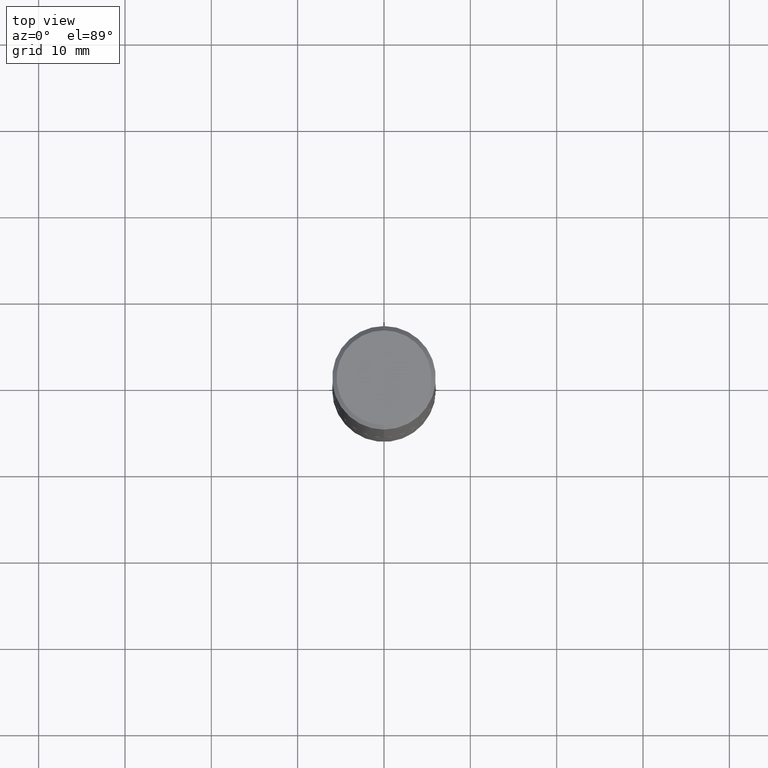
[diagram: clean part render]
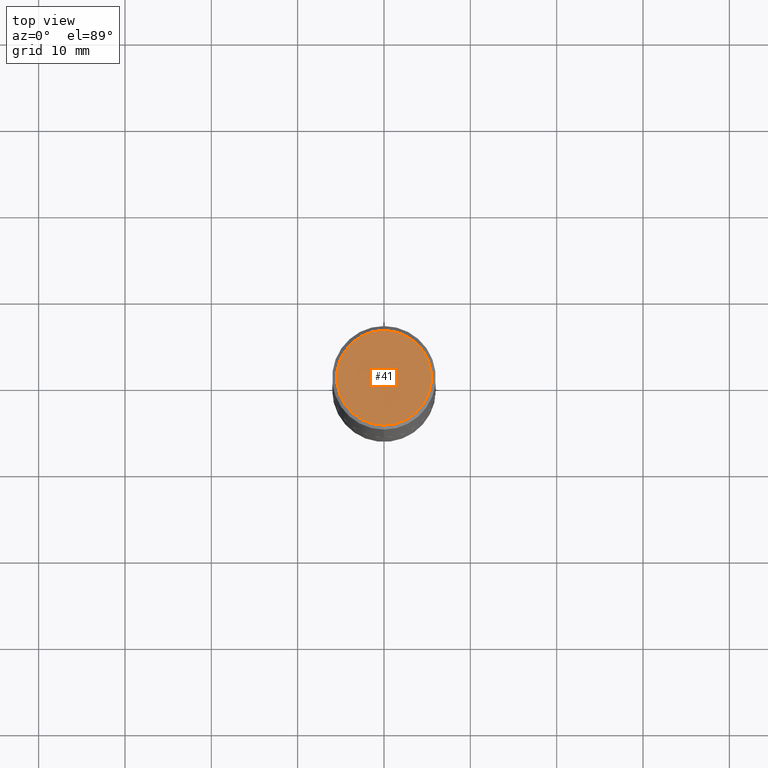
[diagram: same view with one face highlighted and labeled with its STEP entity id]
A machine part, top view. The second image highlights one B-rep face of the part: STEP entity #41.
In plain terms, the highlighted planar face has unit normal (0, -0, -1).
Its self-contained STEP definition (entity closure, byte-faithful):
#7 = CARTESIAN_POINT ( 'NONE',  ( -6.055996773249123304E-45, 8.648664241745118212E-31, 2.476745178514206857E-16 ) ) ;
#39 = VERTEX_POINT ( 'NONE', #111 ) ;
#41 = ADVANCED_FACE ( 'NONE', ( #214 ), #273, .F. ) ;
#59 = CIRCLE ( 'NONE', #222, 0.2161999999999996980 ) ;
#92 = CARTESIAN_POINT ( 'NONE',  ( 1.579546157692632438E-15, 0.2161999999999996980, -5.072845410320630762E-16 ) ) ;
#93 = DIRECTION ( 'NONE',  ( -2.445143257281760563E-29, 3.491947543401872647E-15, 1.000000000000000000 ) ) ;
#111 = CARTESIAN_POINT ( 'NONE',  ( -1.551844647095918761E-15, -0.2161999999999996980, 1.002633576734904349E-15 ) ) ;
#116 = DIRECTION ( 'NONE',  ( -6.982962677686265922E-15, -1.000000000000000000, 3.491947543401872253E-15 ) ) ;
#119 = ORIENTED_EDGE ( 'NONE', *, *, #155, .T. ) ;
#125 = DIRECTION ( 'NONE',  ( -6.982962677686265922E-15, -1.000000000000000000, 3.491947543401872253E-15 ) ) ;
#140 = CARTESIAN_POINT ( 'NONE',  ( 1.509716530915768548E-15, 0.2161999999999996980, -6.311217999577736163E-16 ) ) ;
#151 = DIRECTION ( 'NONE',  ( -2.445143257281760563E-29, 3.491947543401872647E-15, 1.000000000000000000 ) ) ;
#155 = EDGE_CURVE ( 'NONE', #39, #267, #173, .T. ) ;
#173 = CIRCLE ( 'NONE', #191, 0.2161999999999996980 ) ;
#191 = AXIS2_PLACEMENT_3D ( 'NONE', #370, #93, #125 ) ;
#214 = FACE_OUTER_BOUND ( 'NONE', #269, .T. ) ;
#222 = AXIS2_PLACEMENT_3D ( 'NONE', #7, #151, #116 ) ;
#266 = ORIENTED_EDGE ( 'NONE', *, *, #322, .T. ) ;
#267 = VERTEX_POINT ( 'NONE', #92 ) ;
#269 = EDGE_LOOP ( 'NONE', ( #266, #119 ) ) ;
#273 = PLANE ( 'NONE',  #308 ) ;
#308 = AXIS2_PLACEMENT_3D ( 'NONE', #140, #396, #390 ) ;
#322 = EDGE_CURVE ( 'NONE', #267, #39, #59, .T. ) ;
#370 = CARTESIAN_POINT ( 'NONE',  ( -6.055996773249123304E-45, 8.648664241745118212E-31, 2.476745178514206857E-16 ) ) ;
#390 = DIRECTION ( 'NONE',  ( 6.982962677686265922E-15, 1.000000000000000000, -3.491947543401873041E-15 ) ) ;
#396 = DIRECTION ( 'NONE',  ( 2.445143257281760283E-29, -3.491947543401873041E-15, -1.000000000000000000 ) ) ;